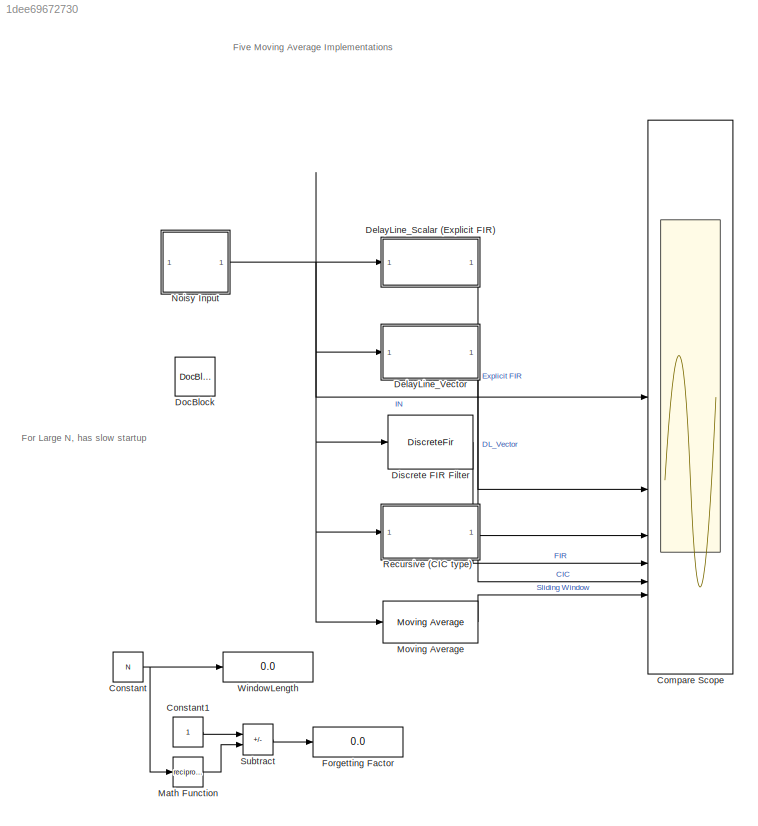
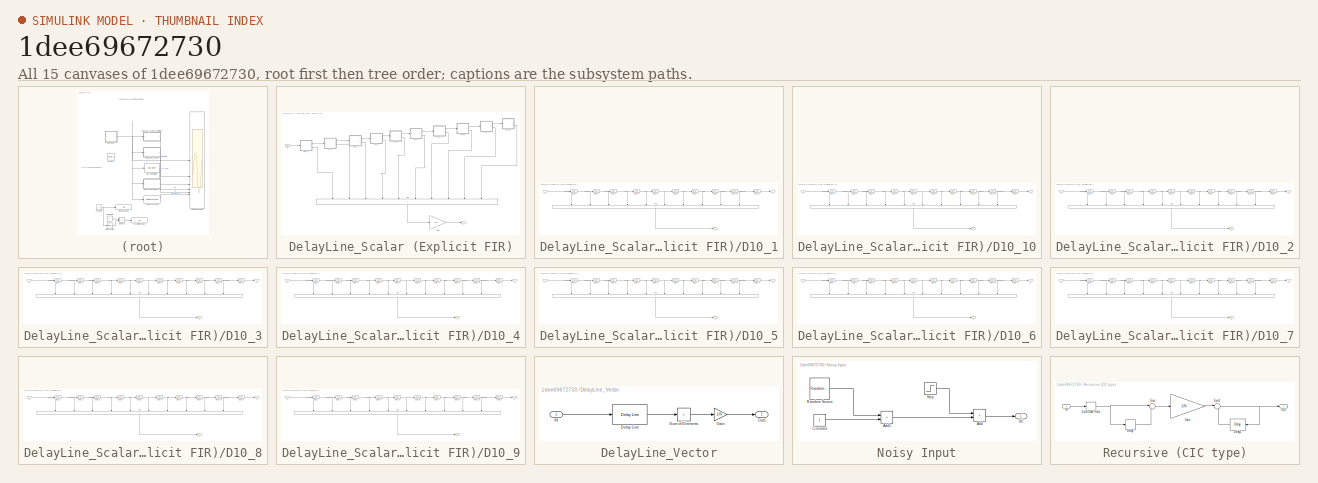
[diagram: thumbnail index - all 15 canvases of the model, root first then tree order]
MODEL slx_1dee69672730
KIND model
CONFIG AbsTol = auto
CONFIG EnableMultiTasking = off
CONFIG FixedStep = auto
CONFIG InitFcn = N = 100;
CONFIG MaxStep = auto
CONFIG MinStep = auto
CONFIG PreLoadFcn = N = 100;
CONFIG RelTol = 1e-3
CONFIG SampleTimeConstraint = Unconstrained
CONFIG SolverName = VariableStepAuto
CONFIG StartTime = 0.0
CONFIG StopTime = 2000
BLOCK [Scope] Compare Scope
  Floating = off
  NumInputPorts = 6
  ScopeSpecificationString = Simulink.scopes.TimeScopeBlockCfg('CurrentConfiguration', extmgr.ConfigurationSet(extmgr.Configuration('Core','General UI',true),extmgr.Configuration('Core','Source UI',true),extmgr.Configuration('Sources','WiredSimulink',true),extmgr.Configuration('Visuals','Time Domain',true,'SerializedDisplays',{struct('MinYLimReal','-0.91369','MaxYLimReal','3.97383','YLabelReal','','MinYLimMag','0.00000','MaxY...<+2305ch>
BLOCK [Constant] Constant
  Value = N
BLOCK [Constant] Constant1
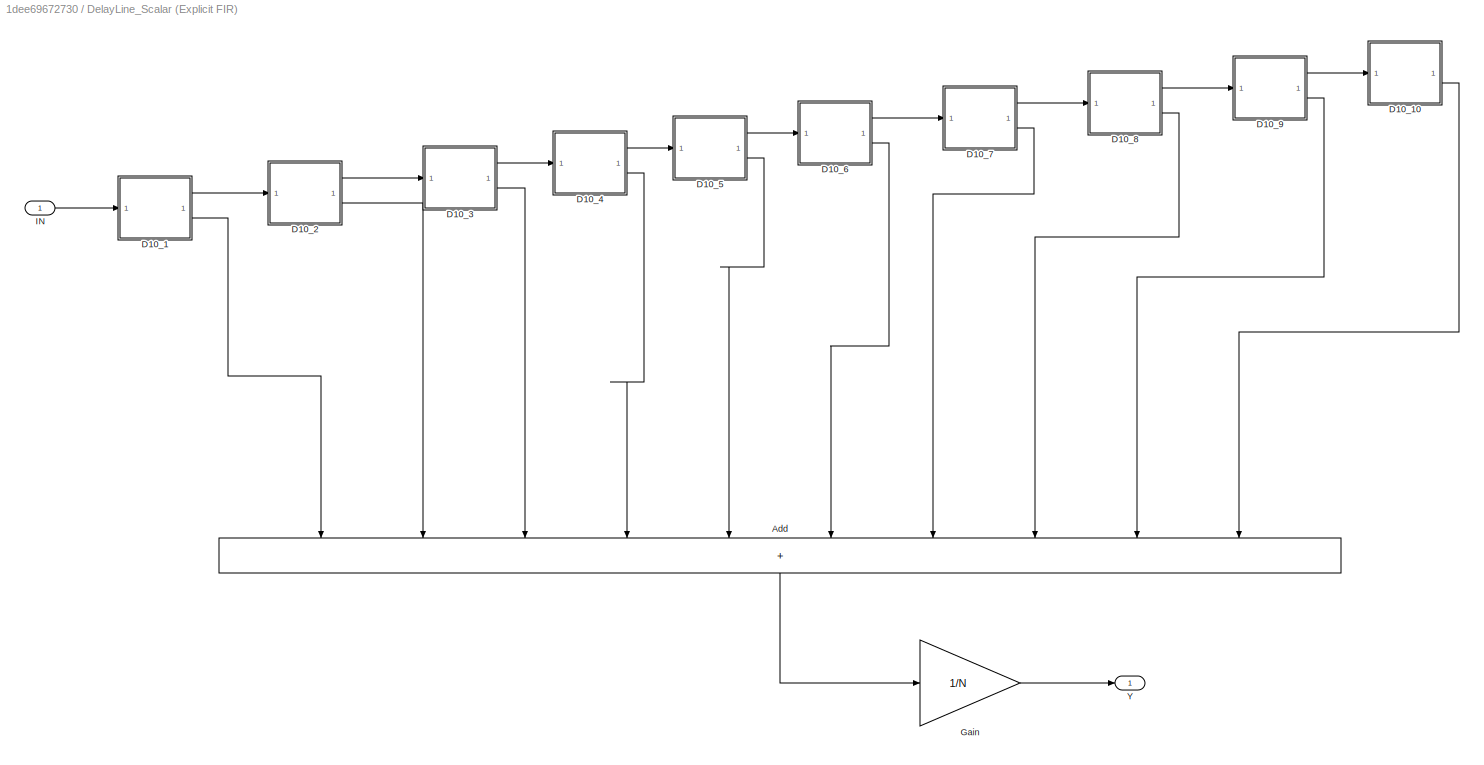
BLOCK [SubSystem] DelayLine_Scalar (Explicit FIR)
BLOCK [Sum] DelayLine_Scalar (Explicit FIR)/Add
  IconShape = rectangular
  Inputs = ++++++++++
  NameLocation = left
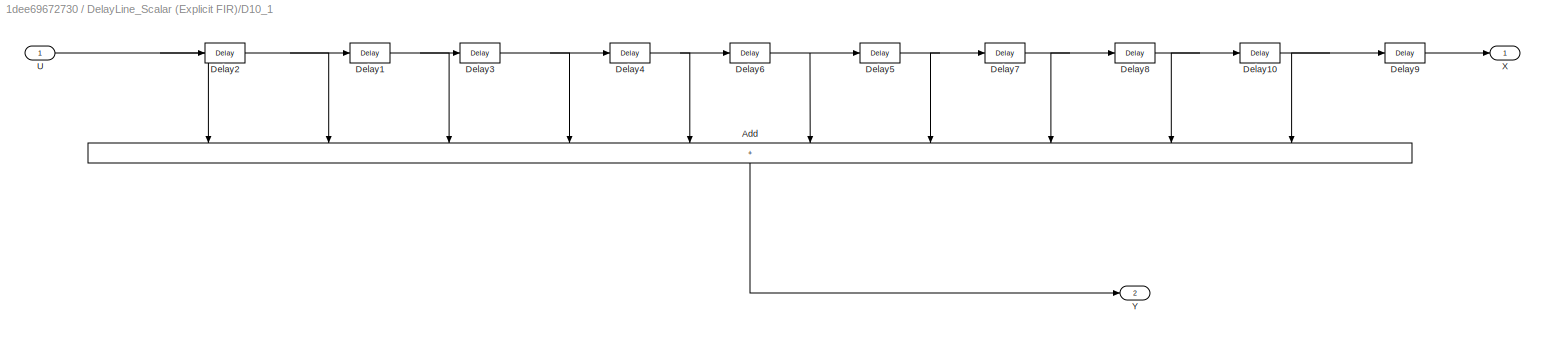
BLOCK [SubSystem] DelayLine_Scalar (Explicit FIR)/D10_1
BLOCK [Sum] DelayLine_Scalar (Explicit FIR)/D10_1/Add
  IconShape = rectangular
  Inputs = ++++++++++
  NameLocation = left
BLOCK [Delay] DelayLine_Scalar (Explicit FIR)/D10_1/Delay1
  DelayLength = 1
  InputPortMap = u0
  InputProcessing = Columns as channels (frame based)
BLOCK [Delay] DelayLine_Scalar (Explicit FIR)/D10_1/Delay10
  DelayLength = 1
  InputPortMap = u0
  InputProcessing = Columns as channels (frame based)
BLOCK [Delay] DelayLine_Scalar (Explicit FIR)/D10_1/Delay2
  DelayLength = 1
  InputPortMap = u0
  InputProcessing = Columns as channels (frame based)
BLOCK [Delay] DelayLine_Scalar (Explicit FIR)/D10_1/Delay3
  DelayLength = 1
  InputPortMap = u0
  InputProcessing = Columns as channels (frame based)
BLOCK [Delay] DelayLine_Scalar (Explicit FIR)/D10_1/Delay4
  DelayLength = 1
  InputPortMap = u0
  InputProcessing = Columns as channels (frame based)
BLOCK [Delay] DelayLine_Scalar (Explicit FIR)/D10_1/Delay5
  DelayLength = 1
  InputPortMap = u0
  InputProcessing = Columns as channels (frame based)
BLOCK [Delay] DelayLine_Scalar (Explicit FIR)/D10_1/Delay6
  DelayLength = 1
  InputPortMap = u0
  InputProcessing = Columns as channels (frame based)
BLOCK [Delay] DelayLine_Scalar (Explicit FIR)/D10_1/Delay7
  DelayLength = 1
  InputPortMap = u0
  InputProcessing = Columns as channels (frame based)
BLOCK [Delay] DelayLine_Scalar (Explicit FIR)/D10_1/Delay8
  DelayLength = 1
  InputPortMap = u0
  InputProcessing = Columns as channels (frame based)
BLOCK [Delay] DelayLine_Scalar (Explicit FIR)/D10_1/Delay9
  DelayLength = 1
  InputPortMap = u0
  InputProcessing = Columns as channels (frame based)
BLOCK [Inport] DelayLine_Scalar (Explicit FIR)/D10_1/U
BLOCK [Outport] DelayLine_Scalar (Explicit FIR)/D10_1/X
BLOCK [Outport] DelayLine_Scalar (Explicit FIR)/D10_1/Y
  Port = 2
BLOCK [SubSystem] DelayLine_Scalar (Explicit FIR)/D10_10
BLOCK [Sum] DelayLine_Scalar (Explicit FIR)/D10_10/Add
  IconShape = rectangular
  Inputs = ++++++++++
  NameLocation = left
BLOCK [Delay] DelayLine_Scalar (Explicit FIR)/D10_10/Delay1
  DelayLength = 1
  InputPortMap = u0
  InputProcessing = Columns as channels (frame based)
BLOCK [Delay] DelayLine_Scalar (Explicit FIR)/D10_10/Delay10
  DelayLength = 1
  InputPortMap = u0
  InputProcessing = Columns as channels (frame based)
BLOCK [Delay] DelayLine_Scalar (Explicit FIR)/D10_10/Delay2
  DelayLength = 1
  InputPortMap = u0
  InputProcessing = Columns as channels (frame based)
BLOCK [Delay] DelayLine_Scalar (Explicit FIR)/D10_10/Delay3
  DelayLength = 1
  InputPortMap = u0
  InputProcessing = Columns as channels (frame based)
BLOCK [Delay] DelayLine_Scalar (Explicit FIR)/D10_10/Delay4
  DelayLength = 1
  InputPortMap = u0
  InputProcessing = Columns as channels (frame based)
BLOCK [Delay] DelayLine_Scalar (Explicit FIR)/D10_10/Delay5
  DelayLength = 1
  InputPortMap = u0
  InputProcessing = Columns as channels (frame based)
BLOCK [Delay] DelayLine_Scalar (Explicit FIR)/D10_10/Delay6
  DelayLength = 1
  InputPortMap = u0
  InputProcessing = Columns as channels (frame based)
BLOCK [Delay] DelayLine_Scalar (Explicit FIR)/D10_10/Delay7
  DelayLength = 1
  InputPortMap = u0
  InputProcessing = Columns as channels (frame based)
BLOCK [Delay] DelayLine_Scalar (Explicit FIR)/D10_10/Delay8
  DelayLength = 1
  InputPortMap = u0
  InputProcessing = Columns as channels (frame based)
BLOCK [Delay] DelayLine_Scalar (Explicit FIR)/D10_10/Delay9
  DelayLength = 1
  InputPortMap = u0
  InputProcessing = Columns as channels (frame based)
BLOCK [Inport] DelayLine_Scalar (Explicit FIR)/D10_10/U
BLOCK [Outport] DelayLine_Scalar (Explicit FIR)/D10_10/X
BLOCK [Outport] DelayLine_Scalar (Explicit FIR)/D10_10/Y
  Port = 2
BLOCK [SubSystem] DelayLine_Scalar (Explicit FIR)/D10_2
BLOCK [Sum] DelayLine_Scalar (Explicit FIR)/D10_2/Add
  IconShape = rectangular
  Inputs = ++++++++++
  NameLocation = left
BLOCK [Delay] DelayLine_Scalar (Explicit FIR)/D10_2/Delay1
  DelayLength = 1
  InputPortMap = u0
  InputProcessing = Columns as channels (frame based)
BLOCK [Delay] DelayLine_Scalar (Explicit FIR)/D10_2/Delay10
  DelayLength = 1
  InputPortMap = u0
  InputProcessing = Columns as channels (frame based)
BLOCK [Delay] DelayLine_Scalar (Explicit FIR)/D10_2/Delay2
  DelayLength = 1
  InputPortMap = u0
  InputProcessing = Columns as channels (frame based)
BLOCK [Delay] DelayLine_Scalar (Explicit FIR)/D10_2/Delay3
  DelayLength = 1
  InputPortMap = u0
  InputProcessing = Columns as channels (frame based)
BLOCK [Delay] DelayLine_Scalar (Explicit FIR)/D10_2/Delay4
  DelayLength = 1
  InputPortMap = u0
  InputProcessing = Columns as channels (frame based)
BLOCK [Delay] DelayLine_Scalar (Explicit FIR)/D10_2/Delay5
  DelayLength = 1
  InputPortMap = u0
  InputProcessing = Columns as channels (frame based)
BLOCK [Delay] DelayLine_Scalar (Explicit FIR)/D10_2/Delay6
  DelayLength = 1
  InputPortMap = u0
  InputProcessing = Columns as channels (frame based)
BLOCK [Delay] DelayLine_Scalar (Explicit FIR)/D10_2/Delay7
  DelayLength = 1
  InputPortMap = u0
  InputProcessing = Columns as channels (frame based)
BLOCK [Delay] DelayLine_Scalar (Explicit FIR)/D10_2/Delay8
  DelayLength = 1
  InputPortMap = u0
  InputProcessing = Columns as channels (frame based)
BLOCK [Delay] DelayLine_Scalar (Explicit FIR)/D10_2/Delay9
  DelayLength = 1
  InputPortMap = u0
  InputProcessing = Columns as channels (frame based)
BLOCK [Inport] DelayLine_Scalar (Explicit FIR)/D10_2/U
BLOCK [Outport] DelayLine_Scalar (Explicit FIR)/D10_2/X
BLOCK [Outport] DelayLine_Scalar (Explicit FIR)/D10_2/Y
  Port = 2
BLOCK [SubSystem] DelayLine_Scalar (Explicit FIR)/D10_3
BLOCK [Sum] DelayLine_Scalar (Explicit FIR)/D10_3/Add
  IconShape = rectangular
  Inputs = ++++++++++
  NameLocation = left
BLOCK [Delay] DelayLine_Scalar (Explicit FIR)/D10_3/Delay1
  DelayLength = 1
  InputPortMap = u0
  InputProcessing = Columns as channels (frame based)
BLOCK [Delay] DelayLine_Scalar (Explicit FIR)/D10_3/Delay10
  DelayLength = 1
  InputPortMap = u0
  InputProcessing = Columns as channels (frame based)
BLOCK [Delay] DelayLine_Scalar (Explicit FIR)/D10_3/Delay2
  DelayLength = 1
  InputPortMap = u0
  InputProcessing = Columns as channels (frame based)
BLOCK [Delay] DelayLine_Scalar (Explicit FIR)/D10_3/Delay3
  DelayLength = 1
  InputPortMap = u0
  InputProcessing = Columns as channels (frame based)
BLOCK [Delay] DelayLine_Scalar (Explicit FIR)/D10_3/Delay4
  DelayLength = 1
  InputPortMap = u0
  InputProcessing = Columns as channels (frame based)
BLOCK [Delay] DelayLine_Scalar (Explicit FIR)/D10_3/Delay5
  DelayLength = 1
  InputPortMap = u0
  InputProcessing = Columns as channels (frame based)
BLOCK [Delay] DelayLine_Scalar (Explicit FIR)/D10_3/Delay6
  DelayLength = 1
  InputPortMap = u0
  InputProcessing = Columns as channels (frame based)
BLOCK [Delay] DelayLine_Scalar (Explicit FIR)/D10_3/Delay7
  DelayLength = 1
  InputPortMap = u0
  InputProcessing = Columns as channels (frame based)
BLOCK [Delay] DelayLine_Scalar (Explicit FIR)/D10_3/Delay8
  DelayLength = 1
  InputPortMap = u0
  InputProcessing = Columns as channels (frame based)
BLOCK [Delay] DelayLine_Scalar (Explicit FIR)/D10_3/Delay9
  DelayLength = 1
  InputPortMap = u0
  InputProcessing = Columns as channels (frame based)
BLOCK [Inport] DelayLine_Scalar (Explicit FIR)/D10_3/U
BLOCK [Outport] DelayLine_Scalar (Explicit FIR)/D10_3/X
BLOCK [Outport] DelayLine_Scalar (Explicit FIR)/D10_3/Y
  Port = 2
BLOCK [SubSystem] DelayLine_Scalar (Explicit FIR)/D10_4
BLOCK [Sum] DelayLine_Scalar (Explicit FIR)/D10_4/Add
  IconShape = rectangular
  Inputs = ++++++++++
  NameLocation = left
BLOCK [Delay] DelayLine_Scalar (Explicit FIR)/D10_4/Delay1
  DelayLength = 1
  InputPortMap = u0
  InputProcessing = Columns as channels (frame based)
BLOCK [Delay] DelayLine_Scalar (Explicit FIR)/D10_4/Delay10
  DelayLength = 1
  InputPortMap = u0
  InputProcessing = Columns as channels (frame based)
BLOCK [Delay] DelayLine_Scalar (Explicit FIR)/D10_4/Delay2
  DelayLength = 1
  InputPortMap = u0
  InputProcessing = Columns as channels (frame based)
BLOCK [Delay] DelayLine_Scalar (Explicit FIR)/D10_4/Delay3
  DelayLength = 1
  InputPortMap = u0
  InputProcessing = Columns as channels (frame based)
BLOCK [Delay] DelayLine_Scalar (Explicit FIR)/D10_4/Delay4
  DelayLength = 1
  InputPortMap = u0
  InputProcessing = Columns as channels (frame based)
BLOCK [Delay] DelayLine_Scalar (Explicit FIR)/D10_4/Delay5
  DelayLength = 1
  InputPortMap = u0
  InputProcessing = Columns as channels (frame based)
BLOCK [Delay] DelayLine_Scalar (Explicit FIR)/D10_4/Delay6
  DelayLength = 1
  InputPortMap = u0
  InputProcessing = Columns as channels (frame based)
BLOCK [Delay] DelayLine_Scalar (Explicit FIR)/D10_4/Delay7
  DelayLength = 1
  InputPortMap = u0
  InputProcessing = Columns as channels (frame based)
BLOCK [Delay] DelayLine_Scalar (Explicit FIR)/D10_4/Delay8
  DelayLength = 1
  InputPortMap = u0
  InputProcessing = Columns as channels (frame based)
BLOCK [Delay] DelayLine_Scalar (Explicit FIR)/D10_4/Delay9
  DelayLength = 1
  InputPortMap = u0
  InputProcessing = Columns as channels (frame based)
BLOCK [Inport] DelayLine_Scalar (Explicit FIR)/D10_4/U
BLOCK [Outport] DelayLine_Scalar (Explicit FIR)/D10_4/X
BLOCK [Outport] DelayLine_Scalar (Explicit FIR)/D10_4/Y
  Port = 2
BLOCK [SubSystem] DelayLine_Scalar (Explicit FIR)/D10_5
BLOCK [Sum] DelayLine_Scalar (Explicit FIR)/D10_5/Add
  IconShape = rectangular
  Inputs = ++++++++++
  NameLocation = left
BLOCK [Delay] DelayLine_Scalar (Explicit FIR)/D10_5/Delay1
  DelayLength = 1
  InputPortMap = u0
  InputProcessing = Columns as channels (frame based)
BLOCK [Delay] DelayLine_Scalar (Explicit FIR)/D10_5/Delay10
  DelayLength = 1
  InputPortMap = u0
  InputProcessing = Columns as channels (frame based)
BLOCK [Delay] DelayLine_Scalar (Explicit FIR)/D10_5/Delay2
  DelayLength = 1
  InputPortMap = u0
  InputProcessing = Columns as channels (frame based)
BLOCK [Delay] DelayLine_Scalar (Explicit FIR)/D10_5/Delay3
  DelayLength = 1
  InputPortMap = u0
  InputProcessing = Columns as channels (frame based)
BLOCK [Delay] DelayLine_Scalar (Explicit FIR)/D10_5/Delay4
  DelayLength = 1
  InputPortMap = u0
  InputProcessing = Columns as channels (frame based)
BLOCK [Delay] DelayLine_Scalar (Explicit FIR)/D10_5/Delay5
  DelayLength = 1
  InputPortMap = u0
  InputProcessing = Columns as channels (frame based)
BLOCK [Delay] DelayLine_Scalar (Explicit FIR)/D10_5/Delay6
  DelayLength = 1
  InputPortMap = u0
  InputProcessing = Columns as channels (frame based)
BLOCK [Delay] DelayLine_Scalar (Explicit FIR)/D10_5/Delay7
  DelayLength = 1
  InputPortMap = u0
  InputProcessing = Columns as channels (frame based)
BLOCK [Delay] DelayLine_Scalar (Explicit FIR)/D10_5/Delay8
  DelayLength = 1
  InputPortMap = u0
  InputProcessing = Columns as channels (frame based)
BLOCK [Delay] DelayLine_Scalar (Explicit FIR)/D10_5/Delay9
  DelayLength = 1
  InputPortMap = u0
  InputProcessing = Columns as channels (frame based)
BLOCK [Inport] DelayLine_Scalar (Explicit FIR)/D10_5/U
BLOCK [Outport] DelayLine_Scalar (Explicit FIR)/D10_5/X
BLOCK [Outport] DelayLine_Scalar (Explicit FIR)/D10_5/Y
  Port = 2
BLOCK [SubSystem] DelayLine_Scalar (Explicit FIR)/D10_6
BLOCK [Sum] DelayLine_Scalar (Explicit FIR)/D10_6/Add
  IconShape = rectangular
  Inputs = ++++++++++
  NameLocation = left
BLOCK [Delay] DelayLine_Scalar (Explicit FIR)/D10_6/Delay1
  DelayLength = 1
  InputPortMap = u0
  InputProcessing = Columns as channels (frame based)
BLOCK [Delay] DelayLine_Scalar (Explicit FIR)/D10_6/Delay10
  DelayLength = 1
  InputPortMap = u0
  InputProcessing = Columns as channels (frame based)
BLOCK [Delay] DelayLine_Scalar (Explicit FIR)/D10_6/Delay2
  DelayLength = 1
  InputPortMap = u0
  InputProcessing = Columns as channels (frame based)
BLOCK [Delay] DelayLine_Scalar (Explicit FIR)/D10_6/Delay3
  DelayLength = 1
  InputPortMap = u0
  InputProcessing = Columns as channels (frame based)
BLOCK [Delay] DelayLine_Scalar (Explicit FIR)/D10_6/Delay4
  DelayLength = 1
  InputPortMap = u0
  InputProcessing = Columns as channels (frame based)
BLOCK [Delay] DelayLine_Scalar (Explicit FIR)/D10_6/Delay5
  DelayLength = 1
  InputPortMap = u0
  InputProcessing = Columns as channels (frame based)
BLOCK [Delay] DelayLine_Scalar (Explicit FIR)/D10_6/Delay6
  DelayLength = 1
  InputPortMap = u0
  InputProcessing = Columns as channels (frame based)
BLOCK [Delay] DelayLine_Scalar (Explicit FIR)/D10_6/Delay7
  DelayLength = 1
  InputPortMap = u0
  InputProcessing = Columns as channels (frame based)
BLOCK [Delay] DelayLine_Scalar (Explicit FIR)/D10_6/Delay8
  DelayLength = 1
  InputPortMap = u0
  InputProcessing = Columns as channels (frame based)
BLOCK [Delay] DelayLine_Scalar (Explicit FIR)/D10_6/Delay9
  DelayLength = 1
  InputPortMap = u0
  InputProcessing = Columns as channels (frame based)
BLOCK [Inport] DelayLine_Scalar (Explicit FIR)/D10_6/U
BLOCK [Outport] DelayLine_Scalar (Explicit FIR)/D10_6/X
BLOCK [Outport] DelayLine_Scalar (Explicit FIR)/D10_6/Y
  Port = 2
BLOCK [SubSystem] DelayLine_Scalar (Explicit FIR)/D10_7
BLOCK [Sum] DelayLine_Scalar (Explicit FIR)/D10_7/Add
  IconShape = rectangular
  Inputs = ++++++++++
  NameLocation = left
BLOCK [Delay] DelayLine_Scalar (Explicit FIR)/D10_7/Delay1
  DelayLength = 1
  InputPortMap = u0
  InputProcessing = Columns as channels (frame based)
BLOCK [Delay] DelayLine_Scalar (Explicit FIR)/D10_7/Delay10
  DelayLength = 1
  InputPortMap = u0
  InputProcessing = Columns as channels (frame based)
BLOCK [Delay] DelayLine_Scalar (Explicit FIR)/D10_7/Delay2
  DelayLength = 1
  InputPortMap = u0
  InputProcessing = Columns as channels (frame based)
BLOCK [Delay] DelayLine_Scalar (Explicit FIR)/D10_7/Delay3
  DelayLength = 1
  InputPortMap = u0
  InputProcessing = Columns as channels (frame based)
BLOCK [Delay] DelayLine_Scalar (Explicit FIR)/D10_7/Delay4
  DelayLength = 1
  InputPortMap = u0
  InputProcessing = Columns as channels (frame based)
BLOCK [Delay] DelayLine_Scalar (Explicit FIR)/D10_7/Delay5
  DelayLength = 1
  InputPortMap = u0
  InputProcessing = Columns as channels (frame based)
BLOCK [Delay] DelayLine_Scalar (Explicit FIR)/D10_7/Delay6
  DelayLength = 1
  InputPortMap = u0
  InputProcessing = Columns as channels (frame based)
BLOCK [Delay] DelayLine_Scalar (Explicit FIR)/D10_7/Delay7
  DelayLength = 1
  InputPortMap = u0
  InputProcessing = Columns as channels (frame based)
BLOCK [Delay] DelayLine_Scalar (Explicit FIR)/D10_7/Delay8
  DelayLength = 1
  InputPortMap = u0
  InputProcessing = Columns as channels (frame based)
BLOCK [Delay] DelayLine_Scalar (Explicit FIR)/D10_7/Delay9
  DelayLength = 1
  InputPortMap = u0
  InputProcessing = Columns as channels (frame based)
BLOCK [Inport] DelayLine_Scalar (Explicit FIR)/D10_7/U
BLOCK [Outport] DelayLine_Scalar (Explicit FIR)/D10_7/X
BLOCK [Outport] DelayLine_Scalar (Explicit FIR)/D10_7/Y
  Port = 2
BLOCK [SubSystem] DelayLine_Scalar (Explicit FIR)/D10_8
BLOCK [Sum] DelayLine_Scalar (Explicit FIR)/D10_8/Add
  IconShape = rectangular
  Inputs = ++++++++++
  NameLocation = left
BLOCK [Delay] DelayLine_Scalar (Explicit FIR)/D10_8/Delay1
  DelayLength = 1
  InputPortMap = u0
  InputProcessing = Columns as channels (frame based)
BLOCK [Delay] DelayLine_Scalar (Explicit FIR)/D10_8/Delay10
  DelayLength = 1
  InputPortMap = u0
  InputProcessing = Columns as channels (frame based)
BLOCK [Delay] DelayLine_Scalar (Explicit FIR)/D10_8/Delay2
  DelayLength = 1
  InputPortMap = u0
  InputProcessing = Columns as channels (frame based)
BLOCK [Delay] DelayLine_Scalar (Explicit FIR)/D10_8/Delay3
  DelayLength = 1
  InputPortMap = u0
  InputProcessing = Columns as channels (frame based)
BLOCK [Delay] DelayLine_Scalar (Explicit FIR)/D10_8/Delay4
  DelayLength = 1
  InputPortMap = u0
  InputProcessing = Columns as channels (frame based)
BLOCK [Delay] DelayLine_Scalar (Explicit FIR)/D10_8/Delay5
  DelayLength = 1
  InputPortMap = u0
  InputProcessing = Columns as channels (frame based)
BLOCK [Delay] DelayLine_Scalar (Explicit FIR)/D10_8/Delay6
  DelayLength = 1
  InputPortMap = u0
  InputProcessing = Columns as channels (frame based)
BLOCK [Delay] DelayLine_Scalar (Explicit FIR)/D10_8/Delay7
  DelayLength = 1
  InputPortMap = u0
  InputProcessing = Columns as channels (frame based)
BLOCK [Delay] DelayLine_Scalar (Explicit FIR)/D10_8/Delay8
  DelayLength = 1
  InputPortMap = u0
  InputProcessing = Columns as channels (frame based)
BLOCK [Delay] DelayLine_Scalar (Explicit FIR)/D10_8/Delay9
  DelayLength = 1
  InputPortMap = u0
  InputProcessing = Columns as channels (frame based)
BLOCK [Inport] DelayLine_Scalar (Explicit FIR)/D10_8/U
BLOCK [Outport] DelayLine_Scalar (Explicit FIR)/D10_8/X
BLOCK [Outport] DelayLine_Scalar (Explicit FIR)/D10_8/Y
  Port = 2
BLOCK [SubSystem] DelayLine_Scalar (Explicit FIR)/D10_9
BLOCK [Sum] DelayLine_Scalar (Explicit FIR)/D10_9/Add
  IconShape = rectangular
  Inputs = ++++++++++
  NameLocation = left
BLOCK [Delay] DelayLine_Scalar (Explicit FIR)/D10_9/Delay1
  DelayLength = 1
  InputPortMap = u0
  InputProcessing = Columns as channels (frame based)
BLOCK [Delay] DelayLine_Scalar (Explicit FIR)/D10_9/Delay10
  DelayLength = 1
  InputPortMap = u0
  InputProcessing = Columns as channels (frame based)
BLOCK [Delay] DelayLine_Scalar (Explicit FIR)/D10_9/Delay2
  DelayLength = 1
  InputPortMap = u0
  InputProcessing = Columns as channels (frame based)
BLOCK [Delay] DelayLine_Scalar (Explicit FIR)/D10_9/Delay3
  DelayLength = 1
  InputPortMap = u0
  InputProcessing = Columns as channels (frame based)
BLOCK [Delay] DelayLine_Scalar (Explicit FIR)/D10_9/Delay4
  DelayLength = 1
  InputPortMap = u0
  InputProcessing = Columns as channels (frame based)
BLOCK [Delay] DelayLine_Scalar (Explicit FIR)/D10_9/Delay5
  DelayLength = 1
  InputPortMap = u0
  InputProcessing = Columns as channels (frame based)
BLOCK [Delay] DelayLine_Scalar (Explicit FIR)/D10_9/Delay6
  DelayLength = 1
  InputPortMap = u0
  InputProcessing = Columns as channels (frame based)
BLOCK [Delay] DelayLine_Scalar (Explicit FIR)/D10_9/Delay7
  DelayLength = 1
  InputPortMap = u0
  InputProcessing = Columns as channels (frame based)
BLOCK [Delay] DelayLine_Scalar (Explicit FIR)/D10_9/Delay8
  DelayLength = 1
  InputPortMap = u0
  InputProcessing = Columns as channels (frame based)
BLOCK [Delay] DelayLine_Scalar (Explicit FIR)/D10_9/Delay9
  DelayLength = 1
  InputPortMap = u0
  InputProcessing = Columns as channels (frame based)
BLOCK [Inport] DelayLine_Scalar (Explicit FIR)/D10_9/U
BLOCK [Outport] DelayLine_Scalar (Explicit FIR)/D10_9/X
BLOCK [Outport] DelayLine_Scalar (Explicit FIR)/D10_9/Y
  Port = 2
BLOCK [Gain] DelayLine_Scalar (Explicit FIR)/Gain
  Gain = 1/N
BLOCK [Inport] DelayLine_Scalar (Explicit FIR)/IN
BLOCK [Outport] DelayLine_Scalar (Explicit FIR)/Y
BLOCK [SubSystem] DelayLine_Vector
BLOCK [Reference] DelayLine_Vector/Delay Line  REF=dspbuff3/Delay Line
  SourceBlock = dspbuff3/Delay Line
  SourceType = Delay Line
  UserDataPersistent = on
BLOCK [Gain] DelayLine_Vector/Gain
  Gain = 1/N
BLOCK [Inport] DelayLine_Vector/IN
BLOCK [Outport] DelayLine_Vector/Out1
BLOCK [Sum] DelayLine_Vector/Sum of Elements
  IconShape = rectangular
  Inputs = +
BLOCK [DiscreteFir] Discrete FIR Filter
  Coefficients = ones(1,N)/N
  InputPortMap = u0
  OutputPortMap = o0
BLOCK [Reference] DocBlock  REF=simulink/Model-Wide
Utilities/DocBlock
  SourceBlock = simulink/Model-Wide\nUtilities/DocBlock
  SourceType = DocBlock
  UserDataPersistent = on
BLOCK [Display] Forgetting Factor
  Decimation = 1
BLOCK [Math] Math Function
  Operator = reciprocal
BLOCK [Reference] Moving Average  REF=dspstat3/Moving
Average
  AttributesFormatString = %<Method>
  SourceBlock = dspstat3/Moving\nAverage
  SourceType = dsp.simulink.MovingAverage
BLOCK [SubSystem] Noisy Input
BLOCK [Sum] Noisy Input/Add
  IconShape = rectangular
BLOCK [Sum] Noisy Input/Add1
  IconShape = rectangular
BLOCK [Constant] Noisy Input/Constant
  SampleTime = 1
BLOCK [Outport] Noisy Input/IN
  VectorParamsAs1DForOutWhenUnconnected = off
BLOCK [Reference] Noisy Input/Random Source  REF=dspsrcs4/Random
Source
  SourceBlock = dspsrcs4/Random\nSource
  SourceType = dsp.simulink.RandomSource
BLOCK [Step] Noisy Input/Step
  SampleTime = 0
  Time = 500
BLOCK [SubSystem] Recursive (CIC type)
BLOCK [Delay] Recursive (CIC type)/Delay
  DelayLength = N
  InputPortMap = u0
BLOCK [Delay] Recursive (CIC type)/Delay1
  DelayLength = 1
  InputPortMap = u0
  InputProcessing = Columns as channels (frame based)
  NameLocation = top
BLOCK [Gain] Recursive (CIC type)/Gain
  Gain = 1/N
BLOCK [Inport] Recursive (CIC type)/IN
BLOCK [Outport] Recursive (CIC type)/Out1
BLOCK [Sum] Recursive (CIC type)/Sum
  Inputs = |+-
BLOCK [Sum] Recursive (CIC type)/Sum1
  Inputs = |++
BLOCK [ZeroOrderHold] Recursive (CIC type)/Zero-Order Hold
  Commented = through
  SampleTime = Ts
BLOCK [Sum] Subtract
  IconShape = rectangular
  Inputs = +-
BLOCK [Display] WindowLength 
  Decimation = 1
ANNOTATION (root): Five Moving Average Implementations
ANNOTATION (root): For Large N, has slow startup
LINE Constant1:1 -> Subtract:1
NET Constant:1 -> Math Function:1, WindowLength :1
LINE DelayLine_Scalar (Explicit FIR)/Add:1 -> DelayLine_Scalar (Explicit FIR)/Gain:1
LINE DelayLine_Scalar (Explicit FIR)/D10_1/Add:1 -> DelayLine_Scalar (Explicit FIR)/D10_1/Y:1
NET DelayLine_Scalar (Explicit FIR)/D10_1/Delay10:1 -> DelayLine_Scalar (Explicit FIR)/D10_1/Add:10, DelayLine_Scalar (Explicit FIR)/D10_1/Delay9:1
NET DelayLine_Scalar (Explicit FIR)/D10_1/Delay1:1 -> DelayLine_Scalar (Explicit FIR)/D10_1/Add:3, DelayLine_Scalar (Explicit FIR)/D10_1/Delay3:1
NET DelayLine_Scalar (Explicit FIR)/D10_1/Delay2:1 -> DelayLine_Scalar (Explicit FIR)/D10_1/Add:2, DelayLine_Scalar (Explicit FIR)/D10_1/Delay1:1
NET DelayLine_Scalar (Explicit FIR)/D10_1/Delay3:1 -> DelayLine_Scalar (Explicit FIR)/D10_1/Add:4, DelayLine_Scalar (Explicit FIR)/D10_1/Delay4:1
NET DelayLine_Scalar (Explicit FIR)/D10_1/Delay4:1 -> DelayLine_Scalar (Explicit FIR)/D10_1/Add:5, DelayLine_Scalar (Explicit FIR)/D10_1/Delay6:1
NET DelayLine_Scalar (Explicit FIR)/D10_1/Delay5:1 -> DelayLine_Scalar (Explicit FIR)/D10_1/Add:7, DelayLine_Scalar (Explicit FIR)/D10_1/Delay7:1
NET DelayLine_Scalar (Explicit FIR)/D10_1/Delay6:1 -> DelayLine_Scalar (Explicit FIR)/D10_1/Add:6, DelayLine_Scalar (Explicit FIR)/D10_1/Delay5:1
NET DelayLine_Scalar (Explicit FIR)/D10_1/Delay7:1 -> DelayLine_Scalar (Explicit FIR)/D10_1/Add:8, DelayLine_Scalar (Explicit FIR)/D10_1/Delay8:1
NET DelayLine_Scalar (Explicit FIR)/D10_1/Delay8:1 -> DelayLine_Scalar (Explicit FIR)/D10_1/Add:9, DelayLine_Scalar (Explicit FIR)/D10_1/Delay10:1
LINE DelayLine_Scalar (Explicit FIR)/D10_1/Delay9:1 -> DelayLine_Scalar (Explicit FIR)/D10_1/X:1
NET DelayLine_Scalar (Explicit FIR)/D10_1/U:1 -> DelayLine_Scalar (Explicit FIR)/D10_1/Add:1, DelayLine_Scalar (Explicit FIR)/D10_1/Delay2:1
LINE DelayLine_Scalar (Explicit FIR)/D10_10/Add:1 -> DelayLine_Scalar (Explicit FIR)/D10_10/Y:1
NET DelayLine_Scalar (Explicit FIR)/D10_10/Delay10:1 -> DelayLine_Scalar (Explicit FIR)/D10_10/Add:10, DelayLine_Scalar (Explicit FIR)/D10_10/Delay9:1
NET DelayLine_Scalar (Explicit FIR)/D10_10/Delay1:1 -> DelayLine_Scalar (Explicit FIR)/D10_10/Add:3, DelayLine_Scalar (Explicit FIR)/D10_10/Delay3:1
NET DelayLine_Scalar (Explicit FIR)/D10_10/Delay2:1 -> DelayLine_Scalar (Explicit FIR)/D10_10/Add:2, DelayLine_Scalar (Explicit FIR)/D10_10/Delay1:1
NET DelayLine_Scalar (Explicit FIR)/D10_10/Delay3:1 -> DelayLine_Scalar (Explicit FIR)/D10_10/Add:4, DelayLine_Scalar (Explicit FIR)/D10_10/Delay4:1
NET DelayLine_Scalar (Explicit FIR)/D10_10/Delay4:1 -> DelayLine_Scalar (Explicit FIR)/D10_10/Add:5, DelayLine_Scalar (Explicit FIR)/D10_10/Delay6:1
NET DelayLine_Scalar (Explicit FIR)/D10_10/Delay5:1 -> DelayLine_Scalar (Explicit FIR)/D10_10/Add:7, DelayLine_Scalar (Explicit FIR)/D10_10/Delay7:1
NET DelayLine_Scalar (Explicit FIR)/D10_10/Delay6:1 -> DelayLine_Scalar (Explicit FIR)/D10_10/Add:6, DelayLine_Scalar (Explicit FIR)/D10_10/Delay5:1
NET DelayLine_Scalar (Explicit FIR)/D10_10/Delay7:1 -> DelayLine_Scalar (Explicit FIR)/D10_10/Add:8, DelayLine_Scalar (Explicit FIR)/D10_10/Delay8:1
NET DelayLine_Scalar (Explicit FIR)/D10_10/Delay8:1 -> DelayLine_Scalar (Explicit FIR)/D10_10/Add:9, DelayLine_Scalar (Explicit FIR)/D10_10/Delay10:1
LINE DelayLine_Scalar (Explicit FIR)/D10_10/Delay9:1 -> DelayLine_Scalar (Explicit FIR)/D10_10/X:1
NET DelayLine_Scalar (Explicit FIR)/D10_10/U:1 -> DelayLine_Scalar (Explicit FIR)/D10_10/Add:1, DelayLine_Scalar (Explicit FIR)/D10_10/Delay2:1
LINE DelayLine_Scalar (Explicit FIR)/D10_10:2 -> DelayLine_Scalar (Explicit FIR)/Add:10
LINE DelayLine_Scalar (Explicit FIR)/D10_1:1 -> DelayLine_Scalar (Explicit FIR)/D10_2:1
LINE DelayLine_Scalar (Explicit FIR)/D10_1:2 -> DelayLine_Scalar (Explicit FIR)/Add:1
LINE DelayLine_Scalar (Explicit FIR)/D10_2/Add:1 -> DelayLine_Scalar (Explicit FIR)/D10_2/Y:1
NET DelayLine_Scalar (Explicit FIR)/D10_2/Delay10:1 -> DelayLine_Scalar (Explicit FIR)/D10_2/Add:10, DelayLine_Scalar (Explicit FIR)/D10_2/Delay9:1
NET DelayLine_Scalar (Explicit FIR)/D10_2/Delay1:1 -> DelayLine_Scalar (Explicit FIR)/D10_2/Add:3, DelayLine_Scalar (Explicit FIR)/D10_2/Delay3:1
NET DelayLine_Scalar (Explicit FIR)/D10_2/Delay2:1 -> DelayLine_Scalar (Explicit FIR)/D10_2/Add:2, DelayLine_Scalar (Explicit FIR)/D10_2/Delay1:1
NET DelayLine_Scalar (Explicit FIR)/D10_2/Delay3:1 -> DelayLine_Scalar (Explicit FIR)/D10_2/Add:4, DelayLine_Scalar (Explicit FIR)/D10_2/Delay4:1
NET DelayLine_Scalar (Explicit FIR)/D10_2/Delay4:1 -> DelayLine_Scalar (Explicit FIR)/D10_2/Add:5, DelayLine_Scalar (Explicit FIR)/D10_2/Delay6:1
NET DelayLine_Scalar (Explicit FIR)/D10_2/Delay5:1 -> DelayLine_Scalar (Explicit FIR)/D10_2/Add:7, DelayLine_Scalar (Explicit FIR)/D10_2/Delay7:1
NET DelayLine_Scalar (Explicit FIR)/D10_2/Delay6:1 -> DelayLine_Scalar (Explicit FIR)/D10_2/Add:6, DelayLine_Scalar (Explicit FIR)/D10_2/Delay5:1
NET DelayLine_Scalar (Explicit FIR)/D10_2/Delay7:1 -> DelayLine_Scalar (Explicit FIR)/D10_2/Add:8, DelayLine_Scalar (Explicit FIR)/D10_2/Delay8:1
NET DelayLine_Scalar (Explicit FIR)/D10_2/Delay8:1 -> DelayLine_Scalar (Explicit FIR)/D10_2/Add:9, DelayLine_Scalar (Explicit FIR)/D10_2/Delay10:1
LINE DelayLine_Scalar (Explicit FIR)/D10_2/Delay9:1 -> DelayLine_Scalar (Explicit FIR)/D10_2/X:1
NET DelayLine_Scalar (Explicit FIR)/D10_2/U:1 -> DelayLine_Scalar (Explicit FIR)/D10_2/Add:1, DelayLine_Scalar (Explicit FIR)/D10_2/Delay2:1
LINE DelayLine_Scalar (Explicit FIR)/D10_2:1 -> DelayLine_Scalar (Explicit FIR)/D10_3:1
LINE DelayLine_Scalar (Explicit FIR)/D10_2:2 -> DelayLine_Scalar (Explicit FIR)/Add:2
LINE DelayLine_Scalar (Explicit FIR)/D10_3/Add:1 -> DelayLine_Scalar (Explicit FIR)/D10_3/Y:1
NET DelayLine_Scalar (Explicit FIR)/D10_3/Delay10:1 -> DelayLine_Scalar (Explicit FIR)/D10_3/Add:10, DelayLine_Scalar (Explicit FIR)/D10_3/Delay9:1
NET DelayLine_Scalar (Explicit FIR)/D10_3/Delay1:1 -> DelayLine_Scalar (Explicit FIR)/D10_3/Add:3, DelayLine_Scalar (Explicit FIR)/D10_3/Delay3:1
NET DelayLine_Scalar (Explicit FIR)/D10_3/Delay2:1 -> DelayLine_Scalar (Explicit FIR)/D10_3/Add:2, DelayLine_Scalar (Explicit FIR)/D10_3/Delay1:1
NET DelayLine_Scalar (Explicit FIR)/D10_3/Delay3:1 -> DelayLine_Scalar (Explicit FIR)/D10_3/Add:4, DelayLine_Scalar (Explicit FIR)/D10_3/Delay4:1
NET DelayLine_Scalar (Explicit FIR)/D10_3/Delay4:1 -> DelayLine_Scalar (Explicit FIR)/D10_3/Add:5, DelayLine_Scalar (Explicit FIR)/D10_3/Delay6:1
NET DelayLine_Scalar (Explicit FIR)/D10_3/Delay5:1 -> DelayLine_Scalar (Explicit FIR)/D10_3/Add:7, DelayLine_Scalar (Explicit FIR)/D10_3/Delay7:1
NET DelayLine_Scalar (Explicit FIR)/D10_3/Delay6:1 -> DelayLine_Scalar (Explicit FIR)/D10_3/Add:6, DelayLine_Scalar (Explicit FIR)/D10_3/Delay5:1
NET DelayLine_Scalar (Explicit FIR)/D10_3/Delay7:1 -> DelayLine_Scalar (Explicit FIR)/D10_3/Add:8, DelayLine_Scalar (Explicit FIR)/D10_3/Delay8:1
NET DelayLine_Scalar (Explicit FIR)/D10_3/Delay8:1 -> DelayLine_Scalar (Explicit FIR)/D10_3/Add:9, DelayLine_Scalar (Explicit FIR)/D10_3/Delay10:1
LINE DelayLine_Scalar (Explicit FIR)/D10_3/Delay9:1 -> DelayLine_Scalar (Explicit FIR)/D10_3/X:1
NET DelayLine_Scalar (Explicit FIR)/D10_3/U:1 -> DelayLine_Scalar (Explicit FIR)/D10_3/Add:1, DelayLine_Scalar (Explicit FIR)/D10_3/Delay2:1
LINE DelayLine_Scalar (Explicit FIR)/D10_3:1 -> DelayLine_Scalar (Explicit FIR)/D10_4:1
LINE DelayLine_Scalar (Explicit FIR)/D10_3:2 -> DelayLine_Scalar (Explicit FIR)/Add:3
LINE DelayLine_Scalar (Explicit FIR)/D10_4/Add:1 -> DelayLine_Scalar (Explicit FIR)/D10_4/Y:1
NET DelayLine_Scalar (Explicit FIR)/D10_4/Delay10:1 -> DelayLine_Scalar (Explicit FIR)/D10_4/Add:10, DelayLine_Scalar (Explicit FIR)/D10_4/Delay9:1
NET DelayLine_Scalar (Explicit FIR)/D10_4/Delay1:1 -> DelayLine_Scalar (Explicit FIR)/D10_4/Add:3, DelayLine_Scalar (Explicit FIR)/D10_4/Delay3:1
NET DelayLine_Scalar (Explicit FIR)/D10_4/Delay2:1 -> DelayLine_Scalar (Explicit FIR)/D10_4/Add:2, DelayLine_Scalar (Explicit FIR)/D10_4/Delay1:1
NET DelayLine_Scalar (Explicit FIR)/D10_4/Delay3:1 -> DelayLine_Scalar (Explicit FIR)/D10_4/Add:4, DelayLine_Scalar (Explicit FIR)/D10_4/Delay4:1
NET DelayLine_Scalar (Explicit FIR)/D10_4/Delay4:1 -> DelayLine_Scalar (Explicit FIR)/D10_4/Add:5, DelayLine_Scalar (Explicit FIR)/D10_4/Delay6:1
NET DelayLine_Scalar (Explicit FIR)/D10_4/Delay5:1 -> DelayLine_Scalar (Explicit FIR)/D10_4/Add:7, DelayLine_Scalar (Explicit FIR)/D10_4/Delay7:1
NET DelayLine_Scalar (Explicit FIR)/D10_4/Delay6:1 -> DelayLine_Scalar (Explicit FIR)/D10_4/Add:6, DelayLine_Scalar (Explicit FIR)/D10_4/Delay5:1
NET DelayLine_Scalar (Explicit FIR)/D10_4/Delay7:1 -> DelayLine_Scalar (Explicit FIR)/D10_4/Add:8, DelayLine_Scalar (Explicit FIR)/D10_4/Delay8:1
NET DelayLine_Scalar (Explicit FIR)/D10_4/Delay8:1 -> DelayLine_Scalar (Explicit FIR)/D10_4/Add:9, DelayLine_Scalar (Explicit FIR)/D10_4/Delay10:1
LINE DelayLine_Scalar (Explicit FIR)/D10_4/Delay9:1 -> DelayLine_Scalar (Explicit FIR)/D10_4/X:1
NET DelayLine_Scalar (Explicit FIR)/D10_4/U:1 -> DelayLine_Scalar (Explicit FIR)/D10_4/Add:1, DelayLine_Scalar (Explicit FIR)/D10_4/Delay2:1
LINE DelayLine_Scalar (Explicit FIR)/D10_4:1 -> DelayLine_Scalar (Explicit FIR)/D10_5:1
LINE DelayLine_Scalar (Explicit FIR)/D10_4:2 -> DelayLine_Scalar (Explicit FIR)/Add:4
LINE DelayLine_Scalar (Explicit FIR)/D10_5/Add:1 -> DelayLine_Scalar (Explicit FIR)/D10_5/Y:1
NET DelayLine_Scalar (Explicit FIR)/D10_5/Delay10:1 -> DelayLine_Scalar (Explicit FIR)/D10_5/Add:10, DelayLine_Scalar (Explicit FIR)/D10_5/Delay9:1
NET DelayLine_Scalar (Explicit FIR)/D10_5/Delay1:1 -> DelayLine_Scalar (Explicit FIR)/D10_5/Add:3, DelayLine_Scalar (Explicit FIR)/D10_5/Delay3:1
NET DelayLine_Scalar (Explicit FIR)/D10_5/Delay2:1 -> DelayLine_Scalar (Explicit FIR)/D10_5/Add:2, DelayLine_Scalar (Explicit FIR)/D10_5/Delay1:1
NET DelayLine_Scalar (Explicit FIR)/D10_5/Delay3:1 -> DelayLine_Scalar (Explicit FIR)/D10_5/Add:4, DelayLine_Scalar (Explicit FIR)/D10_5/Delay4:1
NET DelayLine_Scalar (Explicit FIR)/D10_5/Delay4:1 -> DelayLine_Scalar (Explicit FIR)/D10_5/Add:5, DelayLine_Scalar (Explicit FIR)/D10_5/Delay6:1
NET DelayLine_Scalar (Explicit FIR)/D10_5/Delay5:1 -> DelayLine_Scalar (Explicit FIR)/D10_5/Add:7, DelayLine_Scalar (Explicit FIR)/D10_5/Delay7:1
NET DelayLine_Scalar (Explicit FIR)/D10_5/Delay6:1 -> DelayLine_Scalar (Explicit FIR)/D10_5/Add:6, DelayLine_Scalar (Explicit FIR)/D10_5/Delay5:1
NET DelayLine_Scalar (Explicit FIR)/D10_5/Delay7:1 -> DelayLine_Scalar (Explicit FIR)/D10_5/Add:8, DelayLine_Scalar (Explicit FIR)/D10_5/Delay8:1
NET DelayLine_Scalar (Explicit FIR)/D10_5/Delay8:1 -> DelayLine_Scalar (Explicit FIR)/D10_5/Add:9, DelayLine_Scalar (Explicit FIR)/D10_5/Delay10:1
LINE DelayLine_Scalar (Explicit FIR)/D10_5/Delay9:1 -> DelayLine_Scalar (Explicit FIR)/D10_5/X:1
NET DelayLine_Scalar (Explicit FIR)/D10_5/U:1 -> DelayLine_Scalar (Explicit FIR)/D10_5/Add:1, DelayLine_Scalar (Explicit FIR)/D10_5/Delay2:1
LINE DelayLine_Scalar (Explicit FIR)/D10_5:1 -> DelayLine_Scalar (Explicit FIR)/D10_6:1
LINE DelayLine_Scalar (Explicit FIR)/D10_5:2 -> DelayLine_Scalar (Explicit FIR)/Add:5
LINE DelayLine_Scalar (Explicit FIR)/D10_6/Add:1 -> DelayLine_Scalar (Explicit FIR)/D10_6/Y:1
NET DelayLine_Scalar (Explicit FIR)/D10_6/Delay10:1 -> DelayLine_Scalar (Explicit FIR)/D10_6/Add:10, DelayLine_Scalar (Explicit FIR)/D10_6/Delay9:1
NET DelayLine_Scalar (Explicit FIR)/D10_6/Delay1:1 -> DelayLine_Scalar (Explicit FIR)/D10_6/Add:3, DelayLine_Scalar (Explicit FIR)/D10_6/Delay3:1
NET DelayLine_Scalar (Explicit FIR)/D10_6/Delay2:1 -> DelayLine_Scalar (Explicit FIR)/D10_6/Add:2, DelayLine_Scalar (Explicit FIR)/D10_6/Delay1:1
NET DelayLine_Scalar (Explicit FIR)/D10_6/Delay3:1 -> DelayLine_Scalar (Explicit FIR)/D10_6/Add:4, DelayLine_Scalar (Explicit FIR)/D10_6/Delay4:1
NET DelayLine_Scalar (Explicit FIR)/D10_6/Delay4:1 -> DelayLine_Scalar (Explicit FIR)/D10_6/Add:5, DelayLine_Scalar (Explicit FIR)/D10_6/Delay6:1
NET DelayLine_Scalar (Explicit FIR)/D10_6/Delay5:1 -> DelayLine_Scalar (Explicit FIR)/D10_6/Add:7, DelayLine_Scalar (Explicit FIR)/D10_6/Delay7:1
NET DelayLine_Scalar (Explicit FIR)/D10_6/Delay6:1 -> DelayLine_Scalar (Explicit FIR)/D10_6/Add:6, DelayLine_Scalar (Explicit FIR)/D10_6/Delay5:1
NET DelayLine_Scalar (Explicit FIR)/D10_6/Delay7:1 -> DelayLine_Scalar (Explicit FIR)/D10_6/Add:8, DelayLine_Scalar (Explicit FIR)/D10_6/Delay8:1
NET DelayLine_Scalar (Explicit FIR)/D10_6/Delay8:1 -> DelayLine_Scalar (Explicit FIR)/D10_6/Add:9, DelayLine_Scalar (Explicit FIR)/D10_6/Delay10:1
LINE DelayLine_Scalar (Explicit FIR)/D10_6/Delay9:1 -> DelayLine_Scalar (Explicit FIR)/D10_6/X:1
NET DelayLine_Scalar (Explicit FIR)/D10_6/U:1 -> DelayLine_Scalar (Explicit FIR)/D10_6/Add:1, DelayLine_Scalar (Explicit FIR)/D10_6/Delay2:1
LINE DelayLine_Scalar (Explicit FIR)/D10_6:1 -> DelayLine_Scalar (Explicit FIR)/D10_7:1
LINE DelayLine_Scalar (Explicit FIR)/D10_6:2 -> DelayLine_Scalar (Explicit FIR)/Add:6
LINE DelayLine_Scalar (Explicit FIR)/D10_7/Add:1 -> DelayLine_Scalar (Explicit FIR)/D10_7/Y:1
NET DelayLine_Scalar (Explicit FIR)/D10_7/Delay10:1 -> DelayLine_Scalar (Explicit FIR)/D10_7/Add:10, DelayLine_Scalar (Explicit FIR)/D10_7/Delay9:1
NET DelayLine_Scalar (Explicit FIR)/D10_7/Delay1:1 -> DelayLine_Scalar (Explicit FIR)/D10_7/Add:3, DelayLine_Scalar (Explicit FIR)/D10_7/Delay3:1
NET DelayLine_Scalar (Explicit FIR)/D10_7/Delay2:1 -> DelayLine_Scalar (Explicit FIR)/D10_7/Add:2, DelayLine_Scalar (Explicit FIR)/D10_7/Delay1:1
NET DelayLine_Scalar (Explicit FIR)/D10_7/Delay3:1 -> DelayLine_Scalar (Explicit FIR)/D10_7/Add:4, DelayLine_Scalar (Explicit FIR)/D10_7/Delay4:1
NET DelayLine_Scalar (Explicit FIR)/D10_7/Delay4:1 -> DelayLine_Scalar (Explicit FIR)/D10_7/Add:5, DelayLine_Scalar (Explicit FIR)/D10_7/Delay6:1
NET DelayLine_Scalar (Explicit FIR)/D10_7/Delay5:1 -> DelayLine_Scalar (Explicit FIR)/D10_7/Add:7, DelayLine_Scalar (Explicit FIR)/D10_7/Delay7:1
NET DelayLine_Scalar (Explicit FIR)/D10_7/Delay6:1 -> DelayLine_Scalar (Explicit FIR)/D10_7/Add:6, DelayLine_Scalar (Explicit FIR)/D10_7/Delay5:1
NET DelayLine_Scalar (Explicit FIR)/D10_7/Delay7:1 -> DelayLine_Scalar (Explicit FIR)/D10_7/Add:8, DelayLine_Scalar (Explicit FIR)/D10_7/Delay8:1
NET DelayLine_Scalar (Explicit FIR)/D10_7/Delay8:1 -> DelayLine_Scalar (Explicit FIR)/D10_7/Add:9, DelayLine_Scalar (Explicit FIR)/D10_7/Delay10:1
LINE DelayLine_Scalar (Explicit FIR)/D10_7/Delay9:1 -> DelayLine_Scalar (Explicit FIR)/D10_7/X:1
NET DelayLine_Scalar (Explicit FIR)/D10_7/U:1 -> DelayLine_Scalar (Explicit FIR)/D10_7/Add:1, DelayLine_Scalar (Explicit FIR)/D10_7/Delay2:1
LINE DelayLine_Scalar (Explicit FIR)/D10_7:1 -> DelayLine_Scalar (Explicit FIR)/D10_8:1
LINE DelayLine_Scalar (Explicit FIR)/D10_7:2 -> DelayLine_Scalar (Explicit FIR)/Add:7
LINE DelayLine_Scalar (Explicit FIR)/D10_8/Add:1 -> DelayLine_Scalar (Explicit FIR)/D10_8/Y:1
NET DelayLine_Scalar (Explicit FIR)/D10_8/Delay10:1 -> DelayLine_Scalar (Explicit FIR)/D10_8/Add:10, DelayLine_Scalar (Explicit FIR)/D10_8/Delay9:1
NET DelayLine_Scalar (Explicit FIR)/D10_8/Delay1:1 -> DelayLine_Scalar (Explicit FIR)/D10_8/Add:3, DelayLine_Scalar (Explicit FIR)/D10_8/Delay3:1
NET DelayLine_Scalar (Explicit FIR)/D10_8/Delay2:1 -> DelayLine_Scalar (Explicit FIR)/D10_8/Add:2, DelayLine_Scalar (Explicit FIR)/D10_8/Delay1:1
NET DelayLine_Scalar (Explicit FIR)/D10_8/Delay3:1 -> DelayLine_Scalar (Explicit FIR)/D10_8/Add:4, DelayLine_Scalar (Explicit FIR)/D10_8/Delay4:1
NET DelayLine_Scalar (Explicit FIR)/D10_8/Delay4:1 -> DelayLine_Scalar (Explicit FIR)/D10_8/Add:5, DelayLine_Scalar (Explicit FIR)/D10_8/Delay6:1
NET DelayLine_Scalar (Explicit FIR)/D10_8/Delay5:1 -> DelayLine_Scalar (Explicit FIR)/D10_8/Add:7, DelayLine_Scalar (Explicit FIR)/D10_8/Delay7:1
NET DelayLine_Scalar (Explicit FIR)/D10_8/Delay6:1 -> DelayLine_Scalar (Explicit FIR)/D10_8/Add:6, DelayLine_Scalar (Explicit FIR)/D10_8/Delay5:1
NET DelayLine_Scalar (Explicit FIR)/D10_8/Delay7:1 -> DelayLine_Scalar (Explicit FIR)/D10_8/Add:8, DelayLine_Scalar (Explicit FIR)/D10_8/Delay8:1
NET DelayLine_Scalar (Explicit FIR)/D10_8/Delay8:1 -> DelayLine_Scalar (Explicit FIR)/D10_8/Add:9, DelayLine_Scalar (Explicit FIR)/D10_8/Delay10:1
LINE DelayLine_Scalar (Explicit FIR)/D10_8/Delay9:1 -> DelayLine_Scalar (Explicit FIR)/D10_8/X:1
NET DelayLine_Scalar (Explicit FIR)/D10_8/U:1 -> DelayLine_Scalar (Explicit FIR)/D10_8/Add:1, DelayLine_Scalar (Explicit FIR)/D10_8/Delay2:1
LINE DelayLine_Scalar (Explicit FIR)/D10_8:1 -> DelayLine_Scalar (Explicit FIR)/D10_9:1
LINE DelayLine_Scalar (Explicit FIR)/D10_8:2 -> DelayLine_Scalar (Explicit FIR)/Add:8
LINE DelayLine_Scalar (Explicit FIR)/D10_9/Add:1 -> DelayLine_Scalar (Explicit FIR)/D10_9/Y:1
NET DelayLine_Scalar (Explicit FIR)/D10_9/Delay10:1 -> DelayLine_Scalar (Explicit FIR)/D10_9/Add:10, DelayLine_Scalar (Explicit FIR)/D10_9/Delay9:1
NET DelayLine_Scalar (Explicit FIR)/D10_9/Delay1:1 -> DelayLine_Scalar (Explicit FIR)/D10_9/Add:3, DelayLine_Scalar (Explicit FIR)/D10_9/Delay3:1
NET DelayLine_Scalar (Explicit FIR)/D10_9/Delay2:1 -> DelayLine_Scalar (Explicit FIR)/D10_9/Add:2, DelayLine_Scalar (Explicit FIR)/D10_9/Delay1:1
NET DelayLine_Scalar (Explicit FIR)/D10_9/Delay3:1 -> DelayLine_Scalar (Explicit FIR)/D10_9/Add:4, DelayLine_Scalar (Explicit FIR)/D10_9/Delay4:1
NET DelayLine_Scalar (Explicit FIR)/D10_9/Delay4:1 -> DelayLine_Scalar (Explicit FIR)/D10_9/Add:5, DelayLine_Scalar (Explicit FIR)/D10_9/Delay6:1
NET DelayLine_Scalar (Explicit FIR)/D10_9/Delay5:1 -> DelayLine_Scalar (Explicit FIR)/D10_9/Add:7, DelayLine_Scalar (Explicit FIR)/D10_9/Delay7:1
NET DelayLine_Scalar (Explicit FIR)/D10_9/Delay6:1 -> DelayLine_Scalar (Explicit FIR)/D10_9/Add:6, DelayLine_Scalar (Explicit FIR)/D10_9/Delay5:1
NET DelayLine_Scalar (Explicit FIR)/D10_9/Delay7:1 -> DelayLine_Scalar (Explicit FIR)/D10_9/Add:8, DelayLine_Scalar (Explicit FIR)/D10_9/Delay8:1
NET DelayLine_Scalar (Explicit FIR)/D10_9/Delay8:1 -> DelayLine_Scalar (Explicit FIR)/D10_9/Add:9, DelayLine_Scalar (Explicit FIR)/D10_9/Delay10:1
LINE DelayLine_Scalar (Explicit FIR)/D10_9/Delay9:1 -> DelayLine_Scalar (Explicit FIR)/D10_9/X:1
NET DelayLine_Scalar (Explicit FIR)/D10_9/U:1 -> DelayLine_Scalar (Explicit FIR)/D10_9/Add:1, DelayLine_Scalar (Explicit FIR)/D10_9/Delay2:1
LINE DelayLine_Scalar (Explicit FIR)/D10_9:1 -> DelayLine_Scalar (Explicit FIR)/D10_10:1
LINE DelayLine_Scalar (Explicit FIR)/D10_9:2 -> DelayLine_Scalar (Explicit FIR)/Add:9
LINE DelayLine_Scalar (Explicit FIR)/Gain:1 -> DelayLine_Scalar (Explicit FIR)/Y:1
LINE DelayLine_Scalar (Explicit FIR)/IN:1 -> DelayLine_Scalar (Explicit FIR)/D10_1:1
LINE DelayLine_Scalar (Explicit FIR):1 -> Compare Scope:2
LINE DelayLine_Vector/Delay Line:1 -> DelayLine_Vector/Sum of Elements:1
LINE DelayLine_Vector/Gain:1 -> DelayLine_Vector/Out1:1
LINE DelayLine_Vector/IN:1 -> DelayLine_Vector/Delay Line:1
LINE DelayLine_Vector/Sum of Elements:1 -> DelayLine_Vector/Gain:1
LINE DelayLine_Vector:1 -> Compare Scope:3
LINE Discrete FIR Filter:1 -> Compare Scope:4
LINE Math Function:1 -> Subtract:2
LINE Moving Average:1 -> Compare Scope:6
LINE Noisy Input/Add1:1 -> Noisy Input/Add:2
LINE Noisy Input/Add:1 -> Noisy Input/IN:1
LINE Noisy Input/Constant:1 -> Noisy Input/Add1:2
LINE Noisy Input/Random Source:1 -> Noisy Input/Add1:1
LINE Noisy Input/Step:1 -> Noisy Input/Add:1
NET Noisy Input:1 -> Compare Scope:1, DelayLine_Scalar (Explicit FIR):1, DelayLine_Vector:1, Discrete FIR Filter:1, Moving Average:1, Recursive (CIC type):1
LINE Recursive (CIC type)/Delay1:1 -> Recursive (CIC type)/Sum1:2
LINE Recursive (CIC type)/Delay:1 -> Recursive (CIC type)/Sum:2
LINE Recursive (CIC type)/Gain:1 -> Recursive (CIC type)/Sum1:1
LINE Recursive (CIC type)/IN:1 -> Recursive (CIC type)/Zero-Order Hold:1
NET Recursive (CIC type)/Sum1:1 -> Recursive (CIC type)/Delay1:1, Recursive (CIC type)/Out1:1
LINE Recursive (CIC type)/Sum:1 -> Recursive (CIC type)/Gain:1
NET Recursive (CIC type)/Zero-Order Hold:1 -> Recursive (CIC type)/Delay:1, Recursive (CIC type)/Sum:1
LINE Recursive (CIC type):1 -> Compare Scope:5
LINE Subtract:1 -> Forgetting Factor:1
note: NET lines group one-source signal fan-out (src -> all destinations, sorted); 1:1 wires keep LINE
